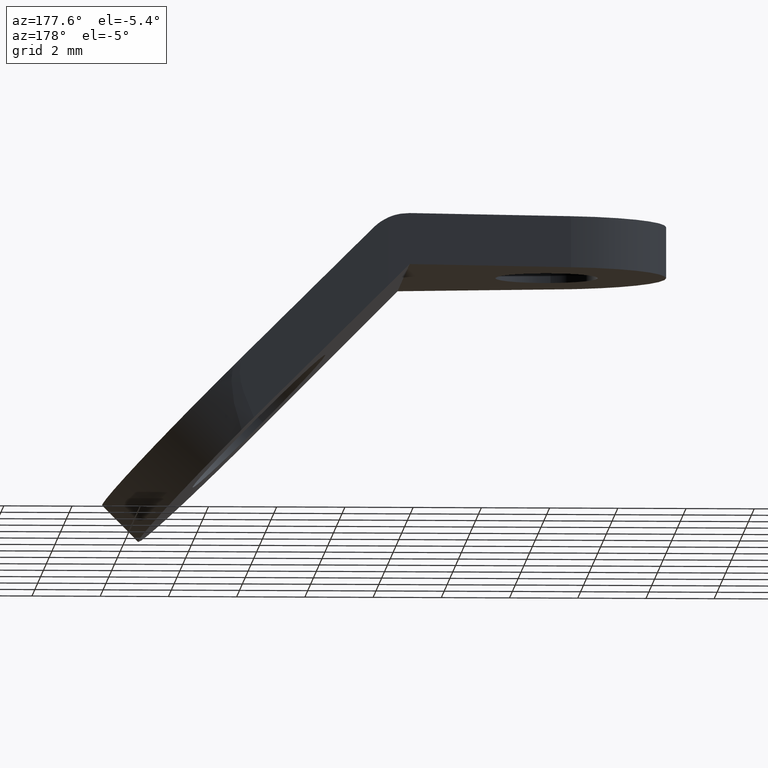
[diagram: clean part render]
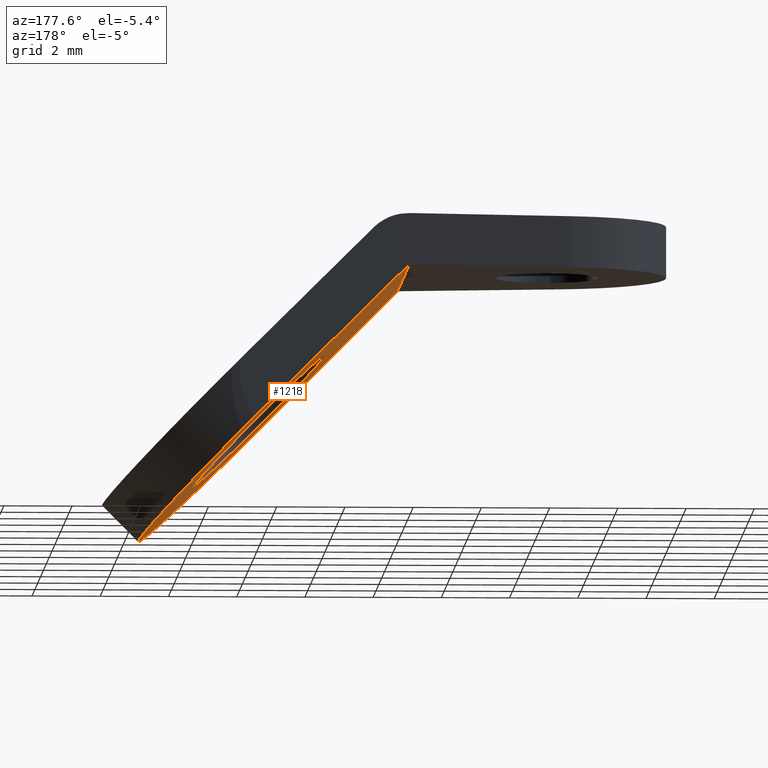
[diagram: same view with one face highlighted and labeled with its STEP entity id]
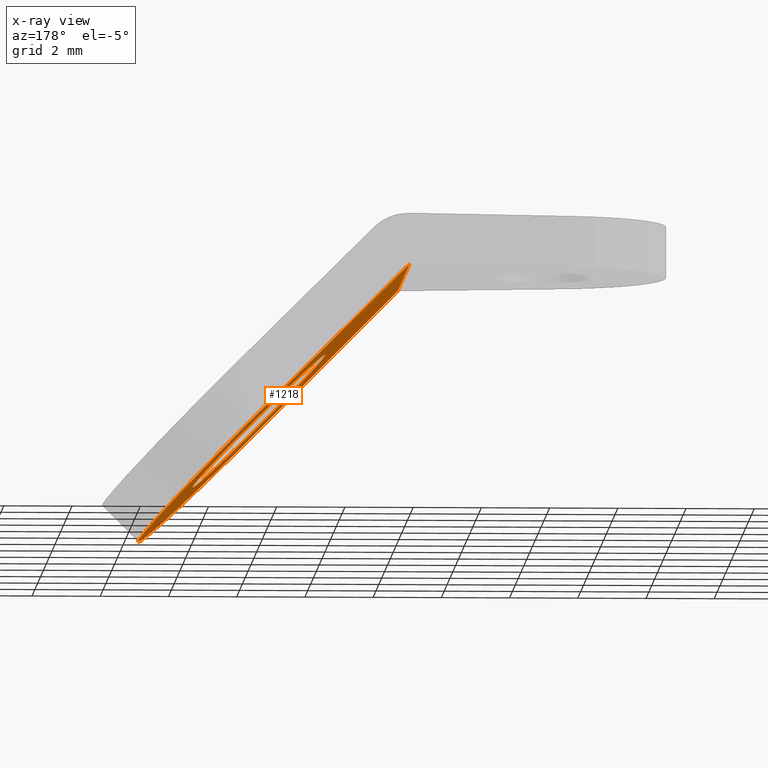
[diagram: x-ray of the same camera — body ghosted, the highlighted face saturated]
A machine part, auxiliary view. The second image highlights one B-rep face of the part: STEP entity #1218.
The next image is the same camera in x-ray: the body ghosted, the highlighted face saturated — about 0% of this face is hidden behind the body in this view.
In plain terms, the highlighted face is a freeform B-spline surface patch.
Its self-contained STEP definition (entity closure, byte-faithful):
#104=CARTESIAN_POINT('',(12.053737295723201,2.744870947583515,-5.861349735007191));
#105=VERTEX_POINT('',#104);
#111=CARTESIAN_POINT('',(13.879572424148220,0.0,-7.687184628694018));
#112=VERTEX_POINT('',#111);
#113=CARTESIAN_POINT('',(13.879572424148220,0.0,-7.687184628694018));
#114=CARTESIAN_POINT('',(13.879572424148218,2.586945573267449,-7.687184628694017));
#115=CARTESIAN_POINT('',(12.053737295723204,2.744870947583515,-5.861349735007191));
#123=(BOUNDED_CURVE()B_SPLINE_CURVE(2,(#113,#114,#115),.UNSPECIFIED.,.F.,.U.)B_SPLINE_CURVE_WITH_KNOTS((3,3),(0.0,0.239333221169428),.UNSPECIFIED.)CURVE()GEOMETRIC_REPRESENTATION_ITEM()RATIONAL_B_SPLINE_CURVE((1.0,0.719603689930777,0.976072596604665))REPRESENTATION_ITEM(''));
#124=EDGE_CURVE('',#112,#105,#123,.T.);
#126=CARTESIAN_POINT('',(11.705506893935681,-2.730776362084040,-5.513119377989861));
#127=VERTEX_POINT('',#126);
#128=CARTESIAN_POINT('',(11.705506893935686,-2.730776362084040,-5.513119377989861));
#129=CARTESIAN_POINT('',(11.819865252506522,-2.750000000000000,-5.627477721858240));
#130=CARTESIAN_POINT('',(11.935028650885240,-2.750000000000000,-5.742641105430990));
#131=CARTESIAN_POINT('',(13.879572424148217,-2.750000000000000,-7.687184628694018));
#132=CARTESIAN_POINT('',(13.879572424148220,0.0,-7.687184628694018));
#140=(BOUNDED_CURVE()B_SPLINE_CURVE(2,(#128,#129,#130,#131,#132),.UNSPECIFIED.,.F.,.U.)B_SPLINE_CURVE_WITH_KNOTS((3,2,3),(0.729562559208364,0.750000000000000,1.0),.UNSPECIFIED.)CURVE()GEOMETRIC_REPRESENTATION_ITEM()RATIONAL_B_SPLINE_CURVE((0.956026922149193,0.976056048728914,1.0,0.707106781186548,1.0))REPRESENTATION_ITEM(''));
#141=EDGE_CURVE('',#127,#112,#140,.T.);
#185=CARTESIAN_POINT('',(9.990484877622263,0.0,-3.798097582167963));
#186=VERTEX_POINT('',#185);
#187=CARTESIAN_POINT('',(9.990484877622263,0.0,-3.798097582167963));
#188=CARTESIAN_POINT('',(9.990484877622263,-2.442481193538749,-3.798097582167963));
#189=CARTESIAN_POINT('',(11.705506893935679,-2.730776362084040,-5.513119377989861));
#197=(BOUNDED_CURVE()B_SPLINE_CURVE(2,(#187,#188,#189),.UNSPECIFIED.,.F.,.U.)B_SPLINE_CURVE_WITH_KNOTS((3,3),(0.500000000000000,0.729562559208364),.UNSPECIFIED.)CURVE()GEOMETRIC_REPRESENTATION_ITEM()RATIONAL_B_SPLINE_CURVE((1.0,0.731050732457634,0.956026922149192))REPRESENTATION_ITEM(''));
#198=EDGE_CURVE('',#186,#127,#197,.T.);
#200=CARTESIAN_POINT('',(12.053737295723204,2.744870947583515,-5.861349735007191));
#201=CARTESIAN_POINT('',(11.994438376139685,2.750000000000000,-5.802050823047434));
#202=CARTESIAN_POINT('',(11.935028650885240,2.750000000000000,-5.742641105430990));
#203=CARTESIAN_POINT('',(9.990484877622263,2.750000000000000,-3.798097582167963));
#204=CARTESIAN_POINT('',(9.990484877622263,0.0,-3.798097582167963));
#212=(BOUNDED_CURVE()B_SPLINE_CURVE(2,(#200,#201,#202,#203,#204),.UNSPECIFIED.,.F.,.U.)B_SPLINE_CURVE_WITH_KNOTS((3,2,3),(0.239333221169428,0.250000000000000,0.500000000000000),.UNSPECIFIED.)CURVE()GEOMETRIC_REPRESENTATION_ITEM()RATIONAL_B_SPLINE_CURVE((0.976072596604665,0.987503091255770,1.0,0.707106781186548,1.0))REPRESENTATION_ITEM(''));
#213=EDGE_CURVE('',#105,#186,#212,.T.);
#458=CARTESIAN_POINT('',(12.646452727762901,-4.897729238720440,-6.454065090844519));
#459=VERTEX_POINT('',#458);
#460=CARTESIAN_POINT('',(12.287161439871340,-4.923036189169120,-6.094773849145049));
#461=VERTEX_POINT('',#460);
#462=CARTESIAN_POINT('',(12.646452727762901,-4.897729238720440,-6.454065090844519));
#463=CARTESIAN_POINT('',(12.587360890903801,-4.914896112606139,-6.394973261582552));
#464=CARTESIAN_POINT('',(12.527766612533300,-4.925565303439320,-6.335378990873650));
#465=CARTESIAN_POINT('',(12.407584608415521,-4.934056207269101,-6.215197002207055));
#466=CARTESIAN_POINT('',(12.347166718117871,-4.931813156839428,-6.154779119677014));
#467=CARTESIAN_POINT('',(12.287161439871340,-4.923036189169130,-6.094773849145049));
#468=B_SPLINE_CURVE_WITH_KNOTS('',3,(#462,#463,#464,#465,#466,#467),.UNSPECIFIED.,.F.,.U.,(4,2,4),(0.0,0.500000000000000,1.0),.UNSPECIFIED.);
#469=EDGE_CURVE('',#459,#461,#468,.T.);
#580=CARTESIAN_POINT('',(8.300141690605081,4.339600362831785,-2.107754612469330));
#581=VERTEX_POINT('',#580);
#582=CARTESIAN_POINT('',(8.327313075662550,4.343829457902276,-2.134925994033505));
#583=VERTEX_POINT('',#582);
#584=CARTESIAN_POINT('',(8.300141690605081,4.339600362831785,-2.107754612469330));
#585=CARTESIAN_POINT('',(8.313707999999908,4.341839444477920,-2.121320920120064));
#586=CARTESIAN_POINT('',(8.327313075662550,4.343829457902276,-2.134925994033505));
#594=(BOUNDED_CURVE()B_SPLINE_CURVE(2,(#584,#585,#586),.UNSPECIFIED.,.F.,.U.)CURVE()GEOMETRIC_REPRESENTATION_ITEM()QUASI_UNIFORM_CURVE()RATIONAL_B_SPLINE_CURVE((1.0,0.999957989709286,1.0))REPRESENTATION_ITEM(''));
#595=EDGE_CURVE('',#581,#583,#594,.T.);
#734=CARTESIAN_POINT('',(8.327313075653819,-4.343829457901000,-2.134925994024780));
#735=VERTEX_POINT('',#734);
#736=CARTESIAN_POINT('',(8.300141690596371,-4.339600362830350,-2.107754612460620));
#737=VERTEX_POINT('',#736);
#738=CARTESIAN_POINT('',(8.327313075653819,-4.343829457901000,-2.134925994024780));
#739=CARTESIAN_POINT('',(8.313707999990681,-4.341839444476570,-2.121320920110896));
#740=CARTESIAN_POINT('',(8.300141690596371,-4.339600362830350,-2.107754612460620));
#748=(BOUNDED_CURVE()B_SPLINE_CURVE(2,(#738,#739,#740),.UNSPECIFIED.,.F.,.U.)CURVE()GEOMETRIC_REPRESENTATION_ITEM()QUASI_UNIFORM_CURVE()RATIONAL_B_SPLINE_CURVE((1.0,0.999957989701585,1.0))REPRESENTATION_ITEM(''));
#749=EDGE_CURVE('',#735,#737,#748,.T.);
#803=CARTESIAN_POINT('',(12.287161439871360,4.923036189169120,-6.094773849145070));
#804=VERTEX_POINT('',#803);
#805=CARTESIAN_POINT('',(12.646452727762901,4.897729238720440,-6.454065090844519));
#806=VERTEX_POINT('',#805);
#807=CARTESIAN_POINT('',(12.287161439871360,4.923036189169120,-6.094773849145070));
#808=CARTESIAN_POINT('',(12.347166892453391,4.931813182339458,-6.154779294012431));
#809=CARTESIAN_POINT('',(12.407216082447540,4.934055690116517,-6.214828476286448));
#810=CARTESIAN_POINT('',(12.527400961414980,4.925617528762977,-6.335013339802344));
#811=CARTESIAN_POINT('',(12.587361389837410,4.914895967660081,-6.394973760515973));
#812=CARTESIAN_POINT('',(12.646452727762901,4.897729238720440,-6.454065090844519));
#813=B_SPLINE_CURVE_WITH_KNOTS('',3,(#807,#808,#809,#810,#811,#812),.UNSPECIFIED.,.F.,.U.,(4,2,4),(0.0,0.500000000000000,1.0),.UNSPECIFIED.);
#814=EDGE_CURVE('',#804,#806,#813,.T.);
#923=CARTESIAN_POINT('',(12.287161439871360,4.923036189169120,-6.094773849145070));
#924=CARTESIAN_POINT('',(8.327313075662550,4.343829457902276,-2.134925994033505));
#925=QUASI_UNIFORM_CURVE('',1,(#923,#924),.UNSPECIFIED.,.F.,.U.);
#926=EDGE_CURVE('',#804,#583,#925,.T.);
#938=CARTESIAN_POINT('',(12.287161439871340,-4.923036189169120,-6.094773849145049));
#939=CARTESIAN_POINT('',(8.327313075653819,-4.343829457901000,-2.134925994024780));
#940=QUASI_UNIFORM_CURVE('',1,(#938,#939),.UNSPECIFIED.,.F.,.U.);
#941=EDGE_CURVE('',#461,#735,#940,.T.);
#1091=CARTESIAN_POINT('',(7.692386999999870,-4.239292140935910,-1.500000000000000));
#1092=VERTEX_POINT('',#1091);
#1093=CARTESIAN_POINT('',(8.300141690596371,-4.339600362830350,-2.107754612460620));
#1094=CARTESIAN_POINT('',(7.692386999999870,-4.239292140935910,-1.500000000000000));
#1095=QUASI_UNIFORM_CURVE('',1,(#1093,#1094),.UNSPECIFIED.,.F.,.U.);
#1096=EDGE_CURVE('',#737,#1092,#1095,.T.);
#1117=CARTESIAN_POINT('',(7.692386999999870,4.239292140935910,-1.500000000000000));
#1118=VERTEX_POINT('',#1117);
#1119=CARTESIAN_POINT('',(8.300141690605081,4.339600362831785,-2.107754612469330));
#1120=CARTESIAN_POINT('',(7.692386999999870,4.239292140935910,-1.500000000000000));
#1121=QUASI_UNIFORM_CURVE('',1,(#1119,#1120),.UNSPECIFIED.,.F.,.U.);
#1122=EDGE_CURVE('',#581,#1118,#1121,.T.);
#1139=CARTESIAN_POINT('',(7.692386999999870,-4.239292140935910,-1.500000000000000));
#1140=CARTESIAN_POINT('',(7.692386999999870,4.239292140935910,-1.500000000000000));
#1141=QUASI_UNIFORM_CURVE('',1,(#1139,#1140),.UNSPECIFIED.,.F.,.U.);
#1142=EDGE_CURVE('',#1092,#1118,#1141,.T.);
#1174=CARTESIAN_POINT('',(12.646452727762890,-4.897729238720441,-6.454065090844523));
#1175=CARTESIAN_POINT('',(15.470562784090644,-4.077292038707300,-9.278174784091041));
#1176=CARTESIAN_POINT('',(15.470562784090649,0.0,-9.278174784091041));
#1177=CARTESIAN_POINT('',(15.470562784090644,4.077292038707298,-9.278174784091043));
#1178=CARTESIAN_POINT('',(12.646452727762890,4.897729238720440,-6.454065090844525));
#1186=(BOUNDED_CURVE()B_SPLINE_CURVE(2,(#1174,#1175,#1176,#1177,#1178),.UNSPECIFIED.,.F.,.U.)B_SPLINE_CURVE_WITH_KNOTS((3,2,3),(0.0,0.500000000000000,1.0),.UNSPECIFIED.)CURVE()GEOMETRIC_REPRESENTATION_ITEM()RATIONAL_B_SPLINE_CURVE((1.0,0.774990678230663,1.0,0.774990678230663,1.0))REPRESENTATION_ITEM(''));
#1187=EDGE_CURVE('',#459,#806,#1186,.T.);
#1195=CARTESIAN_POINT('',(7.303867162449250,-5.424587758685902,-1.111480212399376));
#1196=CARTESIAN_POINT('',(15.859082273929779,-5.424587758685902,-9.666694223980093));
#1197=CARTESIAN_POINT('',(7.303867162449250,5.424595128855095,-1.111480212399376));
#1198=CARTESIAN_POINT('',(15.859082273929779,5.424595128855095,-9.666694223980093));
#1199=B_SPLINE_SURFACE_WITH_KNOTS('',1,1,((#1195,#1197),(#1196,#1198)),.UNSPECIFIED.,.F.,.F.,.U.,(2,2),(2,2),(0.0,12.098900461928420),(0.0,10.849182887541000),.UNSPECIFIED.);
#1200=ORIENTED_EDGE('',*,*,#926,.F.);
#1201=ORIENTED_EDGE('',*,*,#814,.T.);
#1202=ORIENTED_EDGE('',*,*,#1187,.F.);
#1203=ORIENTED_EDGE('',*,*,#469,.T.);
#1204=ORIENTED_EDGE('',*,*,#941,.T.);
#1205=ORIENTED_EDGE('',*,*,#749,.T.);
#1206=ORIENTED_EDGE('',*,*,#1096,.T.);
#1207=ORIENTED_EDGE('',*,*,#1142,.T.);
#1208=ORIENTED_EDGE('',*,*,#1122,.F.);
#1209=ORIENTED_EDGE('',*,*,#595,.T.);
#1210=EDGE_LOOP('',(#1200,#1201,#1202,#1203,#1204,#1205,#1206,#1207,#1208,#1209));
#1211=FACE_OUTER_BOUND('',#1210,.T.);
#1212=ORIENTED_EDGE('',*,*,#124,.T.);
#1213=ORIENTED_EDGE('',*,*,#213,.T.);
#1214=ORIENTED_EDGE('',*,*,#198,.T.);
#1215=ORIENTED_EDGE('',*,*,#141,.T.);
#1216=EDGE_LOOP('',(#1212,#1213,#1214,#1215));
#1217=FACE_BOUND('',#1216,.T.);
#1218=ADVANCED_FACE('',(#1211,#1217),#1199,.F.);